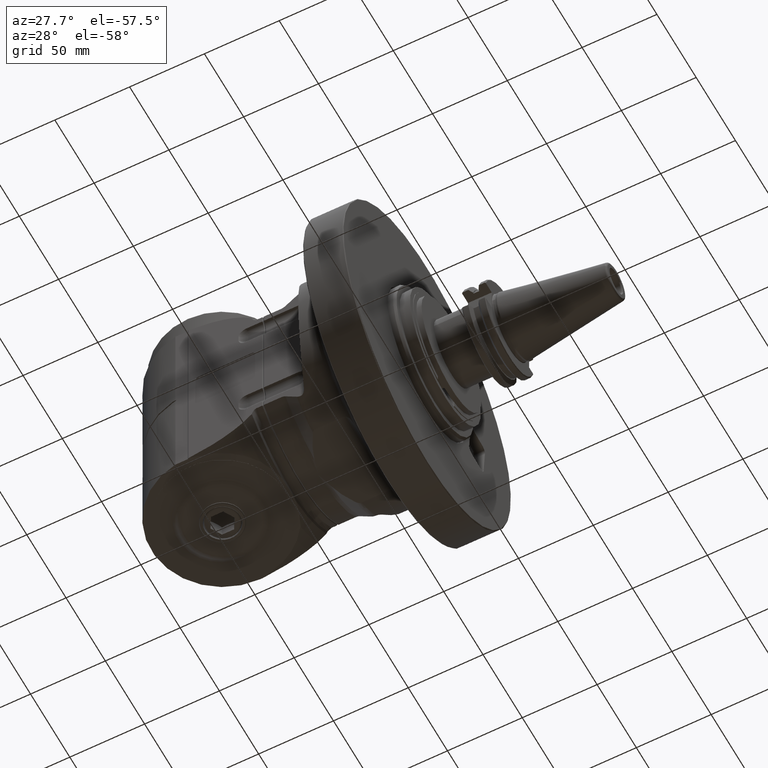
[diagram: clean part render]
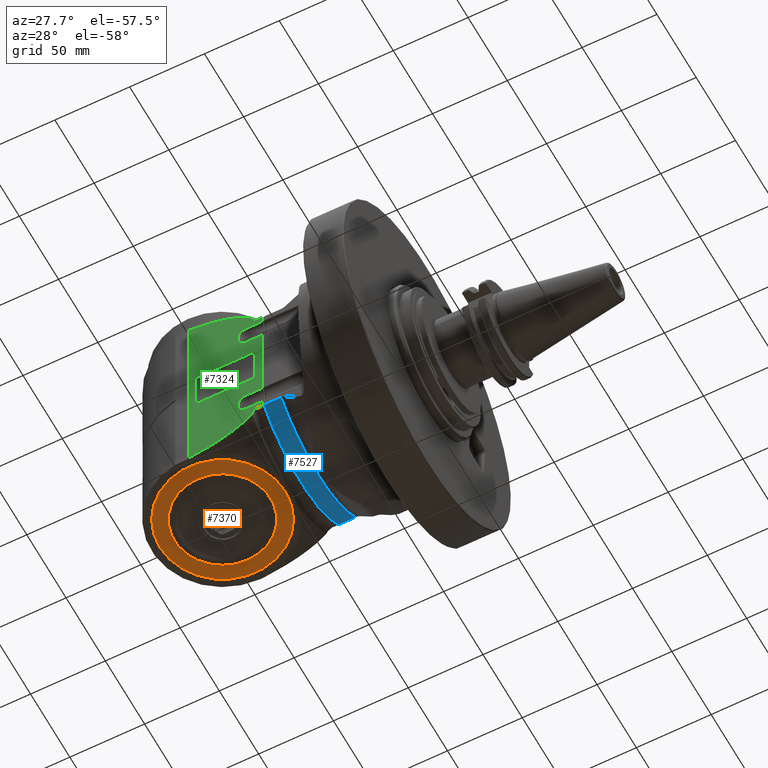
[diagram: same view with three faces highlighted in distinct colors, each labeled with its STEP entity id]
A machine part, auxiliary view with three faces highlighted in distinct colors.
Their STEP definitions:

[orange] entity #7370 — the highlighted planar face has unit normal (-0, 0, 1).
#90=FACE_BOUND('',#1428,.T.);
#442=CIRCLE('',#7970,42.);
#443=CIRCLE('',#7971,32.14359353945);
#950=FACE_OUTER_BOUND('',#1427,.T.);
#1427=EDGE_LOOP('',(#5158));
#1428=EDGE_LOOP('',(#5159));
#3150=VERTEX_POINT('',#11606);
#3151=VERTEX_POINT('',#11608);
#3915=EDGE_CURVE('',#3150,#3150,#442,.T.);
#3916=EDGE_CURVE('',#3151,#3151,#443,.T.);
#5158=ORIENTED_EDGE('',*,*,#3915,.T.);
#5159=ORIENTED_EDGE('',*,*,#3916,.T.);
#7146=PLANE('',#7969);
#7370=ADVANCED_FACE('',(#950,#90),#7146,.F.);
#7969=AXIS2_PLACEMENT_3D('',#11605,#9069,#9070);
#7970=AXIS2_PLACEMENT_3D('',#11607,#9071,#9072);
#7971=AXIS2_PLACEMENT_3D('',#11609,#9073,#9074);
#9069=DIRECTION('center_axis',(0.,-1.,-4.660711712401E-9));
#9070=DIRECTION('ref_axis',(-1.,0.,0.));
#9071=DIRECTION('center_axis',(0.,1.,4.660711712401E-9));
#9072=DIRECTION('ref_axis',(1.,0.,0.));
#9073=DIRECTION('center_axis',(0.,-1.,-4.66071146748E-9));
#9074=DIRECTION('ref_axis',(0.,-4.66071146748E-9,1.));
#11605=CARTESIAN_POINT('Origin',(153.464458,70.50000048658,-104.4000020714));
#11606=CARTESIAN_POINT('',(135.,70.5,3.28580170580783E-7));
#11607=CARTESIAN_POINT('Origin',(93.,70.5,3.285801757243E-7));
#11608=CARTESIAN_POINT('',(93.,70.499999850188,32.1435938680302));
#11609=CARTESIAN_POINT('Origin',(93.,70.5,3.285801766207E-7));

[blue] entity #7527 — the highlighted cylindrical surface (partial cylindrical patch) has radius 68 mm, axis along (-1, 0, -0).
#320=CYLINDRICAL_SURFACE('',#8280,68.);
#563=CIRCLE('',#8238,68.);
#578=CIRCLE('',#8279,68.);
#579=CIRCLE('',#8281,68.);
#1107=FACE_OUTER_BOUND('',#1598,.T.);
#1598=EDGE_LOOP('',(#5899,#5900,#5901,#5902,#5903));
#2150=LINE('',#12502,#2649);
#2204=LINE('',#12961,#2703);
#2649=VECTOR('',#9535,11.50000000001);
#2703=VECTOR('',#9813,11.50000000001);
#3293=VERTEX_POINT('',#12411);
#3300=VERTEX_POINT('',#12492);
#3301=VERTEX_POINT('',#12501);
#3347=VERTEX_POINT('',#12768);
#3372=VERTEX_POINT('',#12949);
#4155=EDGE_CURVE('',#3301,#3300,#2150,.T.);
#4240=EDGE_CURVE('',#3301,#3347,#563,.T.);
#4292=EDGE_CURVE('',#3372,#3293,#578,.T.);
#4293=EDGE_CURVE('',#3293,#3300,#579,.T.);
#4294=EDGE_CURVE('',#3372,#3347,#2204,.T.);
#5899=ORIENTED_EDGE('',*,*,#4293,.F.);
#5900=ORIENTED_EDGE('',*,*,#4292,.F.);
#5901=ORIENTED_EDGE('',*,*,#4294,.T.);
#5902=ORIENTED_EDGE('',*,*,#4240,.F.);
#5903=ORIENTED_EDGE('',*,*,#4155,.T.);
#7527=ADVANCED_FACE('',(#1107),#320,.T.);
#8238=AXIS2_PLACEMENT_3D('',#12769,#9706,#9707);
#8279=AXIS2_PLACEMENT_3D('',#12958,#9807,#9808);
#8280=AXIS2_PLACEMENT_3D('',#12959,#9809,#9810);
#8281=AXIS2_PLACEMENT_3D('',#12960,#9811,#9812);
#9535=DIRECTION('',(-1.,-7.661504281232E-14,-8.155794880021E-14));
#9706=DIRECTION('center_axis',(1.,0.,0.));
#9707=DIRECTION('ref_axis',(0.,0.71558134471189,-0.69852941176469));
#9807=DIRECTION('center_axis',(-1.,0.,0.));
#9808=DIRECTION('ref_axis',(0.,0.71558134471189,0.69852941176469));
#9809=DIRECTION('center_axis',(1.,0.,0.));
#9810=DIRECTION('ref_axis',(0.,-0.711483598977721,-0.702702702702721));
#9811=DIRECTION('center_axis',(-1.,0.,0.));
#9812=DIRECTION('ref_axis',(0.,1.,0.));
#9813=DIRECTION('',(1.,6.858282058199E-14,-8.094008555172E-14));
#12411=CARTESIAN_POINT('',(29.,68.,2.840956636607E-14));
#12492=CARTESIAN_POINT('',(28.99999999999,48.65953144041,-47.5));
#12501=CARTESIAN_POINT('',(40.5,48.65953144041,-47.5));
#12502=CARTESIAN_POINT('',(40.5,48.65953144041,-47.5));
#12768=CARTESIAN_POINT('',(40.5,48.65953144041,47.5));
#12769=CARTESIAN_POINT('Origin',(40.5,0.,0.));
#12949=CARTESIAN_POINT('',(28.99999999999,48.65953144041,47.5));
#12958=CARTESIAN_POINT('Origin',(29.,0.,0.));
#12959=CARTESIAN_POINT('Origin',(32.09230484541,0.,0.));
#12960=CARTESIAN_POINT('Origin',(29.,0.,0.));
#12961=CARTESIAN_POINT('',(28.99999999999,48.65953144041,47.5));

[green] entity #7324 — the highlighted planar face has unit normal (-0, -1, 0).
#81=FACE_BOUND('',#1373,.T.);
#140=B_SPLINE_CURVE_WITH_KNOTS('',3,(#11143,#11144,#11145,#11146,#11147,
#11148,#11149,#11150),.UNSPECIFIED.,.F.,.F.,(4,2,2,4),(1.0483229430396,
1.14818978586264,1.26759418870886,1.37988682074975),.UNSPECIFIED.);
#141=B_SPLINE_CURVE_WITH_KNOTS('',3,(#11173,#11174,#11175,#11176,#11177,
#11178,#11179,#11180),.UNSPECIFIED.,.F.,.F.,(4,2,2,4),(0.716759065363011,
0.829051697370346,0.948456100216565,1.0483229430396),.UNSPECIFIED.);
#388=CIRCLE('',#7868,5.361902798793);
#390=CIRCLE('',#7872,5.361902495971);
#391=CIRCLE('',#7873,5.361902511617);
#392=CIRCLE('',#7874,5.361902783146);
#393=CIRCLE('',#7875,2.);
#394=CIRCLE('',#7876,2.);
#395=CIRCLE('',#7877,2.);
#396=CIRCLE('',#7878,2.);
#904=FACE_OUTER_BOUND('',#1372,.T.);
#1372=EDGE_LOOP('',(#4875,#4876,#4877,#4878,#4879,#4880,#4881,#4882,#4883,
#4884,#4885,#4886,#4887,#4888,#4889,#4890,#4891,#4892,#4893,#4894,#4895,
#4896,#4897,#4898,#4899,#4900,#4901,#4902,#4903,#4904));
#1373=EDGE_LOOP('',(#4905,#4906,#4907,#4908,#4909,#4910,#4911,#4912));
#1897=(
BOUNDED_CURVE()
B_SPLINE_CURVE(2,(#11109,#11110,#11111),.UNSPECIFIED.,.F.,.F.)
B_SPLINE_CURVE_WITH_KNOTS((3,3),(-3.81665247647375,-3.05507238818926),
 .UNSPECIFIED.)
CURVE()
GEOMETRIC_REPRESENTATION_ITEM()
RATIONAL_B_SPLINE_CURVE((1.00242805233161,1.00275866838316,1.00286066409166))
REPRESENTATION_ITEM('')
);
#1898=(
BOUNDED_CURVE()
B_SPLINE_CURVE(2,(#11113,#11114,#11115),.UNSPECIFIED.,.F.,.F.)
B_SPLINE_CURVE_WITH_KNOTS((3,3),(-5.15218811757291,-3.62604994576603),
 .UNSPECIFIED.)
CURVE()
GEOMETRIC_REPRESENTATION_ITEM()
RATIONAL_B_SPLINE_CURVE((1.00006988566866,1.00061227861564,1.00082721347454))
REPRESENTATION_ITEM('')
);
#1899=(
BOUNDED_CURVE()
B_SPLINE_CURVE(2,(#11119,#11120,#11121),.UNSPECIFIED.,.F.,.F.)
B_SPLINE_CURVE_WITH_KNOTS((3,3),(-1.62261619615233,-0.0964780243445153),
 .UNSPECIFIED.)
CURVE()
GEOMETRIC_REPRESENTATION_ITEM()
RATIONAL_B_SPLINE_CURVE((1.00082721347451,1.00061227861562,1.00006988566866))
REPRESENTATION_ITEM('')
);
#1900=(
BOUNDED_CURVE()
B_SPLINE_CURVE(2,(#11123,#11124,#11125),.UNSPECIFIED.,.F.,.F.)
B_SPLINE_CURVE_WITH_KNOTS((3,3),(-2.3746343102468,-1.61307057177932),
 .UNSPECIFIED.)
CURVE()
GEOMETRIC_REPRESENTATION_ITEM()
RATIONAL_B_SPLINE_CURVE((1.00285963728215,1.00275751370773,1.00242677010872))
REPRESENTATION_ITEM('')
);
#1901=(
BOUNDED_CURVE()
B_SPLINE_CURVE(2,(#11127,#11128,#11129),.UNSPECIFIED.,.F.,.F.)
B_SPLINE_CURVE_WITH_KNOTS((3,3),(-3.16200949538596,-2.40546814655181),
 .UNSPECIFIED.)
CURVE()
GEOMETRIC_REPRESENTATION_ITEM()
RATIONAL_B_SPLINE_CURVE((1.00538764070023,1.00555927313811,1.00534035962084))
REPRESENTATION_ITEM('')
);
#1902=(
BOUNDED_CURVE()
B_SPLINE_CURVE(2,(#11131,#11132,#11133),.UNSPECIFIED.,.F.,.F.)
B_SPLINE_CURVE_WITH_KNOTS((3,3),(-4.04781364996153,-3.25545956564696),
 .UNSPECIFIED.)
CURVE()
GEOMETRIC_REPRESENTATION_ITEM()
RATIONAL_B_SPLINE_CURVE((1.00779380276998,1.00864317816411,1.00886138605075))
REPRESENTATION_ITEM('')
);
#1903=(
BOUNDED_CURVE()
B_SPLINE_CURVE(2,(#11135,#11136,#11137),.UNSPECIFIED.,.F.,.F.)
B_SPLINE_CURVE_WITH_KNOTS((3,3),(-5.33059342559129,-4.41668101218839),
 .UNSPECIFIED.)
CURVE()
GEOMETRIC_REPRESENTATION_ITEM()
RATIONAL_B_SPLINE_CURVE((1.01169441726469,1.01453478968817,1.01605747222635))
REPRESENTATION_ITEM('')
);
#1904=(
BOUNDED_CURVE()
B_SPLINE_CURVE(2,(#11139,#11140,#11141),.UNSPECIFIED.,.F.,.F.)
B_SPLINE_CURVE_WITH_KNOTS((3,3),(-8.8287807070043,-8.53082815081097),
 .UNSPECIFIED.)
CURVE()
GEOMETRIC_REPRESENTATION_ITEM()
RATIONAL_B_SPLINE_CURVE((1.06644710737463,1.06859358158024,1.07051950005328))
REPRESENTATION_ITEM('')
);
#1905=(
BOUNDED_CURVE()
B_SPLINE_CURVE(2,(#11182,#11183,#11184),.UNSPECIFIED.,.F.,.F.)
B_SPLINE_CURVE_WITH_KNOTS((3,3),(-3.32731495831818,-3.0293624020753),
 .UNSPECIFIED.)
CURVE()
GEOMETRIC_REPRESENTATION_ITEM()
RATIONAL_B_SPLINE_CURVE((1.0705195000533,1.06859358157993,1.06644710737393))
REPRESENTATION_ITEM('')
);
#1906=(
BOUNDED_CURVE()
B_SPLINE_CURVE(2,(#11186,#11187,#11188),.UNSPECIFIED.,.F.,.F.)
B_SPLINE_CURVE_WITH_KNOTS((3,3),(-2.30450198003025,-1.39058956662816),
 .UNSPECIFIED.)
CURVE()
GEOMETRIC_REPRESENTATION_ITEM()
RATIONAL_B_SPLINE_CURVE((1.01605747222635,1.01453478968817,1.01169441726469))
REPRESENTATION_ITEM('')
);
#1907=(
BOUNDED_CURVE()
B_SPLINE_CURVE(2,(#11190,#11191,#11192),.UNSPECIFIED.,.F.,.F.)
B_SPLINE_CURVE_WITH_KNOTS((3,3),(-2.70759261063058,-1.91523852631661),
 .UNSPECIFIED.)
CURVE()
GEOMETRIC_REPRESENTATION_ITEM()
RATIONAL_B_SPLINE_CURVE((1.00886138605075,1.00864317816411,1.00779380276998))
REPRESENTATION_ITEM('')
);
#1908=(
BOUNDED_CURVE()
B_SPLINE_CURVE(2,(#11193,#11194,#11195),.UNSPECIFIED.,.F.,.F.)
B_SPLINE_CURVE_WITH_KNOTS((3,3),(-3.25359946349269,-2.49705811465809),
 .UNSPECIFIED.)
CURVE()
GEOMETRIC_REPRESENTATION_ITEM()
RATIONAL_B_SPLINE_CURVE((1.00534035962084,1.00555927313811,1.00538764070023))
REPRESENTATION_ITEM('')
);
#2001=LINE('',#11083,#2500);
#2004=LINE('',#11095,#2503);
#2005=LINE('',#11102,#2504);
#2007=LINE('',#11117,#2506);
#2008=LINE('',#11152,#2507);
#2009=LINE('',#11154,#2508);
#2010=LINE('',#11156,#2509);
#2011=LINE('',#11160,#2510);
#2012=LINE('',#11164,#2511);
#2013=LINE('',#11166,#2512);
#2014=LINE('',#11168,#2513);
#2015=LINE('',#11171,#2514);
#2016=LINE('',#11198,#2515);
#2017=LINE('',#11202,#2516);
#2018=LINE('',#11206,#2517);
#2019=LINE('',#11210,#2518);
#2500=VECTOR('',#8768,4.58873517042003);
#2503=VECTOR('',#8781,10.5000000000001);
#2504=VECTOR('',#8790,4.000000000002);
#2506=VECTOR('',#8796,10.);
#2507=VECTOR('',#8797,3.571613276915);
#2508=VECTOR('',#8798,4.58873595797703);
#2509=VECTOR('',#8799,10.5000000000001);
#2510=VECTOR('',#8802,4.000000000001);
#2511=VECTOR('',#8805,10.5000000000001);
#2512=VECTOR('',#8806,58.69397595351);
#2513=VECTOR('',#8807,10.5000000000001);
#2514=VECTOR('',#8810,3.571613276915);
#2515=VECTOR('',#8811,35.5);
#2516=VECTOR('',#8814,24.5);
#2517=VECTOR('',#8817,35.5);
#2518=VECTOR('',#8820,24.5);
#3001=VERTEX_POINT('',#11075);
#3002=VERTEX_POINT('',#11079);
#3006=VERTEX_POINT('',#11092);
#3007=VERTEX_POINT('',#11097);
#3008=VERTEX_POINT('',#11101);
#3010=VERTEX_POINT('',#11107);
#3011=VERTEX_POINT('',#11108);
#3012=VERTEX_POINT('',#11112);
#3013=VERTEX_POINT('',#11116);
#3014=VERTEX_POINT('',#11118);
#3015=VERTEX_POINT('',#11122);
#3016=VERTEX_POINT('',#11126);
#3017=VERTEX_POINT('',#11130);
#3018=VERTEX_POINT('',#11134);
#3019=VERTEX_POINT('',#11138);
#3020=VERTEX_POINT('',#11142);
#3021=VERTEX_POINT('',#11151);
#3022=VERTEX_POINT('',#11153);
#3023=VERTEX_POINT('',#11155);
#3024=VERTEX_POINT('',#11157);
#3025=VERTEX_POINT('',#11159);
#3026=VERTEX_POINT('',#11161);
#3027=VERTEX_POINT('',#11163);
#3028=VERTEX_POINT('',#11165);
#3029=VERTEX_POINT('',#11167);
#3030=VERTEX_POINT('',#11170);
#3031=VERTEX_POINT('',#11172);
#3032=VERTEX_POINT('',#11181);
#3033=VERTEX_POINT('',#11185);
#3034=VERTEX_POINT('',#11189);
#3035=VERTEX_POINT('',#11196);
#3036=VERTEX_POINT('',#11197);
#3037=VERTEX_POINT('',#11199);
#3038=VERTEX_POINT('',#11201);
#3039=VERTEX_POINT('',#11203);
#3040=VERTEX_POINT('',#11205);
#3041=VERTEX_POINT('',#11207);
#3042=VERTEX_POINT('',#11209);
#3723=EDGE_CURVE('',#3001,#3002,#2001,.T.);
#3729=EDGE_CURVE('',#3001,#3006,#2004,.T.);
#3731=EDGE_CURVE('',#3007,#3006,#388,.T.);
#3732=EDGE_CURVE('',#3007,#3008,#2005,.T.);
#3735=EDGE_CURVE('',#3010,#3011,#1897,.T.);
#3736=EDGE_CURVE('',#3012,#3010,#1898,.T.);
#3737=EDGE_CURVE('',#3013,#3012,#2007,.T.);
#3738=EDGE_CURVE('',#3014,#3013,#1899,.T.);
#3739=EDGE_CURVE('',#3015,#3014,#1900,.T.);
#3740=EDGE_CURVE('',#3016,#3015,#1901,.T.);
#3741=EDGE_CURVE('',#3017,#3016,#1902,.T.);
#3742=EDGE_CURVE('',#3018,#3017,#1903,.T.);
#3743=EDGE_CURVE('',#3019,#3018,#1904,.T.);
#3744=EDGE_CURVE('',#3020,#3019,#140,.T.);
#3745=EDGE_CURVE('',#3021,#3020,#2008,.T.);
#3746=EDGE_CURVE('',#3022,#3021,#2009,.T.);
#3747=EDGE_CURVE('',#3023,#3022,#2010,.T.);
#3748=EDGE_CURVE('',#3023,#3024,#390,.T.);
#3749=EDGE_CURVE('',#3025,#3024,#2011,.T.);
#3750=EDGE_CURVE('',#3025,#3026,#391,.T.);
#3751=EDGE_CURVE('',#3027,#3026,#2012,.T.);
#3752=EDGE_CURVE('',#3027,#3028,#2013,.T.);
#3753=EDGE_CURVE('',#3029,#3028,#2014,.T.);
#3754=EDGE_CURVE('',#3029,#3008,#392,.T.);
#3755=EDGE_CURVE('',#3030,#3002,#2015,.T.);
#3756=EDGE_CURVE('',#3031,#3030,#141,.T.);
#3757=EDGE_CURVE('',#3032,#3031,#1905,.T.);
#3758=EDGE_CURVE('',#3033,#3032,#1906,.T.);
#3759=EDGE_CURVE('',#3034,#3033,#1907,.T.);
#3760=EDGE_CURVE('',#3011,#3034,#1908,.T.);
#3761=EDGE_CURVE('',#3035,#3036,#2016,.T.);
#3762=EDGE_CURVE('',#3035,#3037,#393,.T.);
#3763=EDGE_CURVE('',#3038,#3037,#2017,.T.);
#3764=EDGE_CURVE('',#3038,#3039,#394,.T.);
#3765=EDGE_CURVE('',#3040,#3039,#2018,.T.);
#3766=EDGE_CURVE('',#3040,#3041,#395,.T.);
#3767=EDGE_CURVE('',#3042,#3041,#2019,.T.);
#3768=EDGE_CURVE('',#3042,#3036,#396,.T.);
#4875=ORIENTED_EDGE('',*,*,#3735,.F.);
#4876=ORIENTED_EDGE('',*,*,#3736,.F.);
#4877=ORIENTED_EDGE('',*,*,#3737,.F.);
#4878=ORIENTED_EDGE('',*,*,#3738,.F.);
#4879=ORIENTED_EDGE('',*,*,#3739,.F.);
#4880=ORIENTED_EDGE('',*,*,#3740,.F.);
#4881=ORIENTED_EDGE('',*,*,#3741,.F.);
#4882=ORIENTED_EDGE('',*,*,#3742,.F.);
#4883=ORIENTED_EDGE('',*,*,#3743,.F.);
#4884=ORIENTED_EDGE('',*,*,#3744,.F.);
#4885=ORIENTED_EDGE('',*,*,#3745,.F.);
#4886=ORIENTED_EDGE('',*,*,#3746,.F.);
#4887=ORIENTED_EDGE('',*,*,#3747,.F.);
#4888=ORIENTED_EDGE('',*,*,#3748,.T.);
#4889=ORIENTED_EDGE('',*,*,#3749,.F.);
#4890=ORIENTED_EDGE('',*,*,#3750,.T.);
#4891=ORIENTED_EDGE('',*,*,#3751,.F.);
#4892=ORIENTED_EDGE('',*,*,#3752,.T.);
#4893=ORIENTED_EDGE('',*,*,#3753,.F.);
#4894=ORIENTED_EDGE('',*,*,#3754,.T.);
#4895=ORIENTED_EDGE('',*,*,#3732,.F.);
#4896=ORIENTED_EDGE('',*,*,#3731,.T.);
#4897=ORIENTED_EDGE('',*,*,#3729,.F.);
#4898=ORIENTED_EDGE('',*,*,#3723,.T.);
#4899=ORIENTED_EDGE('',*,*,#3755,.F.);
#4900=ORIENTED_EDGE('',*,*,#3756,.F.);
#4901=ORIENTED_EDGE('',*,*,#3757,.F.);
#4902=ORIENTED_EDGE('',*,*,#3758,.F.);
#4903=ORIENTED_EDGE('',*,*,#3759,.F.);
#4904=ORIENTED_EDGE('',*,*,#3760,.F.);
#4905=ORIENTED_EDGE('',*,*,#3761,.F.);
#4906=ORIENTED_EDGE('',*,*,#3762,.T.);
#4907=ORIENTED_EDGE('',*,*,#3763,.F.);
#4908=ORIENTED_EDGE('',*,*,#3764,.T.);
#4909=ORIENTED_EDGE('',*,*,#3765,.F.);
#4910=ORIENTED_EDGE('',*,*,#3766,.T.);
#4911=ORIENTED_EDGE('',*,*,#3767,.F.);
#4912=ORIENTED_EDGE('',*,*,#3768,.T.);
#7124=PLANE('',#7871);
#7324=ADVANCED_FACE('',(#904,#81),#7124,.T.);
#7868=AXIS2_PLACEMENT_3D('',#11099,#8786,#8787);
#7871=AXIS2_PLACEMENT_3D('',#11106,#8794,#8795);
#7872=AXIS2_PLACEMENT_3D('',#11158,#8800,#8801);
#7873=AXIS2_PLACEMENT_3D('',#11162,#8803,#8804);
#7874=AXIS2_PLACEMENT_3D('',#11169,#8808,#8809);
#7875=AXIS2_PLACEMENT_3D('',#11200,#8812,#8813);
#7876=AXIS2_PLACEMENT_3D('',#11204,#8815,#8816);
#7877=AXIS2_PLACEMENT_3D('',#11208,#8818,#8819);
#7878=AXIS2_PLACEMENT_3D('',#11211,#8821,#8822);
#8768=DIRECTION('',(0.,-0.999999999999993,-1.16781395506699E-7));
#8781=DIRECTION('',(0.999999999999991,1.24270251316899E-7,-5.13160047365195E-8));
#8786=DIRECTION('center_axis',(0.,0.,-1.));
#8787=DIRECTION('ref_axis',(1.,-7.139817084894E-9,0.));
#8790=DIRECTION('',(-3.566034578738E-9,1.,-1.141904348855E-9));
#8794=DIRECTION('center_axis',(0.,0.,1.));
#8795=DIRECTION('ref_axis',(0.,1.,0.));
#8796=DIRECTION('',(0.,-1.,0.));
#8797=DIRECTION('',(1.,0.,0.));
#8798=DIRECTION('',(0.,0.999999999999993,-1.16782457830099E-7));
#8799=DIRECTION('',(-0.999999999999991,1.23801550259999E-7,5.07566404567495E-8));
#8800=DIRECTION('center_axis',(0.,0.,-1.));
#8801=DIRECTION('ref_axis',(0.,1.,0.));
#8802=DIRECTION('',(-3.566031026024E-9,1.,-1.141902572499E-9));
#8803=DIRECTION('center_axis',(0.,0.,-1.));
#8804=DIRECTION('ref_axis',(1.,-7.139798914925E-9,0.));
#8805=DIRECTION('',(0.999999999999991,1.24266105469199E-7,-5.13143014640695E-8));
#8806=DIRECTION('',(0.,-1.,-2.176638774495E-13));
#8807=DIRECTION('',(-0.999999999999991,1.23793289016499E-7,5.07532474460095E-8));
#8808=DIRECTION('center_axis',(0.,0.,-1.));
#8809=DIRECTION('ref_axis',(1.060135201248E-14,1.,0.));
#8810=DIRECTION('',(-1.,0.,0.));
#8811=DIRECTION('',(1.,0.,0.));
#8812=DIRECTION('center_axis',(0.,4.660711712401E-9,-1.));
#8813=DIRECTION('ref_axis',(0.,-1.,-4.660711712401E-9));
#8814=DIRECTION('',(0.,-1.,-1.388932687683E-9));
#8815=DIRECTION('center_axis',(0.,4.660711712401E-9,-1.));
#8816=DIRECTION('ref_axis',(-1.,0.,0.));
#8817=DIRECTION('',(-1.,0.,0.));
#8818=DIRECTION('center_axis',(0.,4.660711712401E-9,-1.));
#8819=DIRECTION('ref_axis',(0.,1.,4.660711712401E-9));
#8820=DIRECTION('',(0.,1.,1.388932397666E-9));
#8821=DIRECTION('center_axis',(0.,4.660711712401E-9,-1.));
#8822=DIRECTION('ref_axis',(1.,0.,0.));
#11075=CARTESIAN_POINT('',(41.5000000273158,-44.0707955358212,47.5000004198689));
#11079=CARTESIAN_POINT('',(41.5,-48.65953144041,47.5));
#11083=CARTESIAN_POINT('',(41.5,-44.07079626999,47.50000053588));
#11092=CARTESIAN_POINT('',(52.,-44.0707949661315,47.4999999982333));
#11095=CARTESIAN_POINT('',(41.5,-44.07079626999,47.50000053588));
#11097=CARTESIAN_POINT('',(57.3619027987011,-38.7088921493884,47.5000000009263));
#11099=CARTESIAN_POINT('Origin',(52.,-38.70889216882,47.5));
#11101=CARTESIAN_POINT('',(57.361902783236,-34.708892149581,47.49999999907));
#11102=CARTESIAN_POINT('',(57.3619027981,-38.7088921676,47.50000000228));
#11106=CARTESIAN_POINT('Origin',(27.30028251458,-1.83845993984E-14,47.5));
#11107=CARTESIAN_POINT('',(75.2322766862901,-67.4536878194498,47.4999999988648));
#11108=CARTESIAN_POINT('',(67.7681751170842,-64.9923072657523,47.4999999904396));
#11109=CARTESIAN_POINT('Ctrl Pts',(75.2322766863357,-67.4536878193151,47.5));
#11110=CARTESIAN_POINT('Ctrl Pts',(71.430869353425,-66.2078970437756,47.5));
#11111=CARTESIAN_POINT('Ctrl Pts',(67.768175120167,-64.9923072565347,47.5));
#11112=CARTESIAN_POINT('',(90.9984331509156,-70.4945191566863,47.4907707035502));
#11113=CARTESIAN_POINT('Ctrl Pts',(90.99,-70.4842699473631,47.5));
#11114=CARTESIAN_POINT('Ctrl Pts',(82.938034886313,-68.9464002217593,47.5));
#11115=CARTESIAN_POINT('Ctrl Pts',(75.2322766865588,-67.4536878180672,47.5));
#11116=CARTESIAN_POINT('',(90.9984331721956,70.494519185665,47.490771187602));
#11117=CARTESIAN_POINT('',(90.99,-1.0952673987215E-7,47.5));
#11118=CARTESIAN_POINT('',(75.2322766862894,67.4536878194515,47.4999999988645));
#11119=CARTESIAN_POINT('Ctrl Pts',(75.2322766865575,67.453687818072,47.5));
#11120=CARTESIAN_POINT('Ctrl Pts',(82.938034886314,68.9464002217646,47.5));
#11121=CARTESIAN_POINT('Ctrl Pts',(90.99,70.4842699473681,47.5));
#11122=CARTESIAN_POINT('',(67.7681751170856,64.992307265753,47.4999999904394));
#11123=CARTESIAN_POINT('Ctrl Pts',(67.7681751201685,64.9923072565352,47.5));
#11124=CARTESIAN_POINT('Ctrl Pts',(71.4308693534257,66.2078970437758,47.5));
#11125=CARTESIAN_POINT('Ctrl Pts',(75.2322766863356,67.4536878193151,47.5));
#11126=CARTESIAN_POINT('',(60.8994797052297,61.8688129449817,47.4999999605469));
#11127=CARTESIAN_POINT('Ctrl Pts',(60.8994797210842,61.8688129107392,47.5));
#11128=CARTESIAN_POINT('Ctrl Pts',(64.2492690805102,63.4059268510301,47.5));
#11129=CARTESIAN_POINT('Ctrl Pts',(67.7681751184743,64.9923072627423,47.5));
#11130=CARTESIAN_POINT('',(54.4659591804031,58.0409342337332,47.4999998778045));
#11131=CARTESIAN_POINT('Ctrl Pts',(54.4659592482163,58.0409341217195,47.5));
#11132=CARTESIAN_POINT('Ctrl Pts',(57.5800308451708,59.9173453046576,47.5));
#11133=CARTESIAN_POINT('Ctrl Pts',(60.8994797134885,61.8688129312319,47.5));
#11134=CARTESIAN_POINT('',(48.5357150971841,52.7707309128493,47.4999998914782));
#11135=CARTESIAN_POINT('Ctrl Pts',(48.5357151982424,52.7707308015223,47.5));
#11136=CARTESIAN_POINT('Ctrl Pts',(51.3598159806955,55.3336379373983,47.5));
#11137=CARTESIAN_POINT('Ctrl Pts',(54.4659592011565,58.0409342104074,47.5));
#11138=CARTESIAN_POINT('',(47.6696894050415,50.7346033177575,47.5000000647581));
#11139=CARTESIAN_POINT('Ctrl Pts',(47.6696893833408,50.734603326904,47.5));
#11140=CARTESIAN_POINT('Ctrl Pts',(48.0941841182903,51.7417981147756,47.5));
#11141=CARTESIAN_POINT('Ctrl Pts',(48.5357150649988,52.7707309266834,47.5));
#11142=CARTESIAN_POINT('',(45.07161327692,48.65953144041,47.5));
#11143=CARTESIAN_POINT('Ctrl Pts',(45.07161327692,48.6595314404074,47.5));
#11144=CARTESIAN_POINT('Ctrl Pts',(45.4045027529968,48.6595314404074,47.5));
#11145=CARTESIAN_POINT('Ctrl Pts',(45.7915918957764,48.758203504687,47.5));
#11146=CARTESIAN_POINT('Ctrl Pts',(46.4446655563644,49.0864041652508,47.5));
#11147=CARTESIAN_POINT('Ctrl Pts',(46.806917016625,49.3976797059604,47.5));
#11148=CARTESIAN_POINT('Ctrl Pts',(47.295780472772,49.9955894249672,47.5));
#11149=CARTESIAN_POINT('Ctrl Pts',(47.5149229164036,50.3673904009802,47.5));
#11150=CARTESIAN_POINT('Ctrl Pts',(47.6696893833453,50.7346033269017,47.5));
#11151=CARTESIAN_POINT('',(41.5,48.65953144041,47.5));
#11152=CARTESIAN_POINT('',(41.5,48.65953144041,47.5));
#11153=CARTESIAN_POINT('',(41.5000000273162,44.07079474826,47.5000004198704));
#11154=CARTESIAN_POINT('',(41.5,44.07079548243,47.50000053588));
#11155=CARTESIAN_POINT('',(52.,44.0707941811446,47.500000001306));
#11156=CARTESIAN_POINT('',(52.,44.07079418251,47.50000000294));
#11157=CARTESIAN_POINT('',(57.3619024960629,38.7088917033191,47.4999999990706));
#11158=CARTESIAN_POINT('Origin',(52.,38.70889168408,47.5));
#11159=CARTESIAN_POINT('',(57.3619025115275,34.7088917035116,47.5000000009268));
#11160=CARTESIAN_POINT('',(57.36190251093,34.7088916853,47.50000000228));
#11161=CARTESIAN_POINT('',(52.,29.3469891739452,47.4999999982319));
#11162=CARTESIAN_POINT('Origin',(52.,34.70889168408,47.5));
#11163=CARTESIAN_POINT('',(41.5000000273146,29.3469886042741,47.5000004198534));
#11164=CARTESIAN_POINT('',(41.5,29.34698787013,47.50000053586));
#11165=CARTESIAN_POINT('',(41.5000000273144,-29.3469888175001,47.5000004198436));
#11166=CARTESIAN_POINT('',(41.5,29.34698787013,47.50000053586));
#11167=CARTESIAN_POINT('',(52.,-29.3469893845786,47.5000000013058));
#11168=CARTESIAN_POINT('',(52.,-29.34698938321,47.50000000294));
#11169=CARTESIAN_POINT('Origin',(52.,-34.70889216882,47.5));
#11170=CARTESIAN_POINT('',(45.07161327692,-48.65953144041,47.5));
#11171=CARTESIAN_POINT('',(45.07161327692,-48.65953144041,47.5));
#11172=CARTESIAN_POINT('',(47.6696894049314,-50.7346033174161,47.5000000648437));
#11173=CARTESIAN_POINT('Ctrl Pts',(47.6696893832065,-50.7346033265723,47.5));
#11174=CARTESIAN_POINT('Ctrl Pts',(47.5149229162765,-50.3673904007559,47.5));
#11175=CARTESIAN_POINT('Ctrl Pts',(47.2957804727011,-49.9955894248806,47.5));
#11176=CARTESIAN_POINT('Ctrl Pts',(46.806917016625,-49.3976797059604,47.5));
#11177=CARTESIAN_POINT('Ctrl Pts',(46.4446655563644,-49.0864041652508,47.5));
#11178=CARTESIAN_POINT('Ctrl Pts',(45.7915918957764,-48.758203504687,47.5));
#11179=CARTESIAN_POINT('Ctrl Pts',(45.4045027529968,-48.6595314404074,47.5));
#11180=CARTESIAN_POINT('Ctrl Pts',(45.07161327692,-48.6595314404074,47.5));
#11181=CARTESIAN_POINT('',(48.5357150971874,-52.7707309128555,47.4999998914765));
#11182=CARTESIAN_POINT('Ctrl Pts',(48.5357150650016,-52.7707309266899,47.5));
#11183=CARTESIAN_POINT('Ctrl Pts',(48.0941841182194,-51.7417981146106,47.5));
#11184=CARTESIAN_POINT('Ctrl Pts',(47.669689383202,-50.7346033265746,47.5));
#11185=CARTESIAN_POINT('',(54.465959180403,-58.0409342337331,47.4999998778045));
#11186=CARTESIAN_POINT('Ctrl Pts',(54.4659592011564,-58.0409342104074,47.5));
#11187=CARTESIAN_POINT('Ctrl Pts',(51.3598159806982,-55.3336379374007,47.5));
#11188=CARTESIAN_POINT('Ctrl Pts',(48.5357151982473,-52.7707308015268,47.5));
#11189=CARTESIAN_POINT('',(60.8994797052248,-61.8688129449783,47.499999960548));
#11190=CARTESIAN_POINT('Ctrl Pts',(60.8994797134834,-61.8688129312289,47.5));
#11191=CARTESIAN_POINT('Ctrl Pts',(57.5800308451683,-59.9173453046561,47.5));
#11192=CARTESIAN_POINT('Ctrl Pts',(54.4659592482162,-58.0409341217194,47.5));
#11193=CARTESIAN_POINT('Ctrl Pts',(67.7681751184728,-64.9923072627416,47.5));
#11194=CARTESIAN_POINT('Ctrl Pts',(64.2492690805067,-63.4059268510285,47.5));
#11195=CARTESIAN_POINT('Ctrl Pts',(60.8994797210788,-61.8688129107367,47.5));
#11196=CARTESIAN_POINT('',(48.5,-14.25000022138,47.4999999980618));
#11197=CARTESIAN_POINT('',(84.,-14.2500002213814,47.4999999980618));
#11198=CARTESIAN_POINT('',(48.5,-14.25000022138,47.49999999891));
#11199=CARTESIAN_POINT('',(46.5,-12.2500002213824,47.499999994959));
#11200=CARTESIAN_POINT('Origin',(48.5,-12.25000022138,47.50000000605));
#11201=CARTESIAN_POINT('',(46.5,12.24999977862,47.5000000052107));
#11202=CARTESIAN_POINT('',(46.5,12.24999977862,47.50000001701));
#11203=CARTESIAN_POINT('',(48.5,14.2499997786186,47.500000001696));
#11204=CARTESIAN_POINT('Origin',(48.5,12.24999977862,47.49999999395));
#11205=CARTESIAN_POINT('',(84.,14.24999977862,47.5000000019383));
#11206=CARTESIAN_POINT('',(84.,14.24999977862,47.50000000109));
#11207=CARTESIAN_POINT('',(86.,12.2499997786176,47.500000005041));
#11208=CARTESIAN_POINT('Origin',(84.,12.24999977862,47.49999999395));
#11209=CARTESIAN_POINT('',(86.,-12.25000022138,47.4999999947893));
#11210=CARTESIAN_POINT('',(86.,-12.25000022138,47.49999998299));
#11211=CARTESIAN_POINT('Origin',(84.,-12.25000022138,47.50000000605));